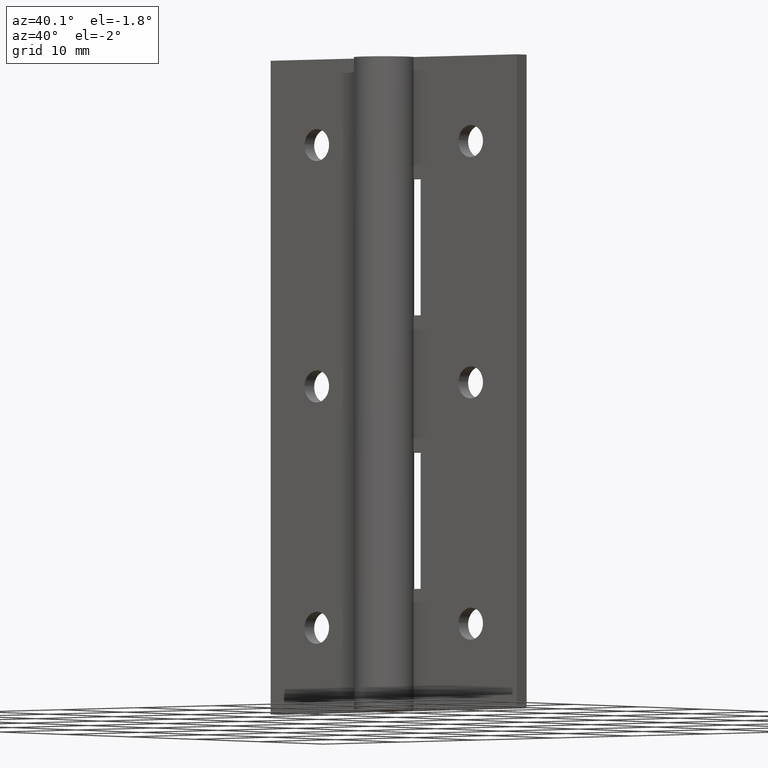
[diagram: clean part render]
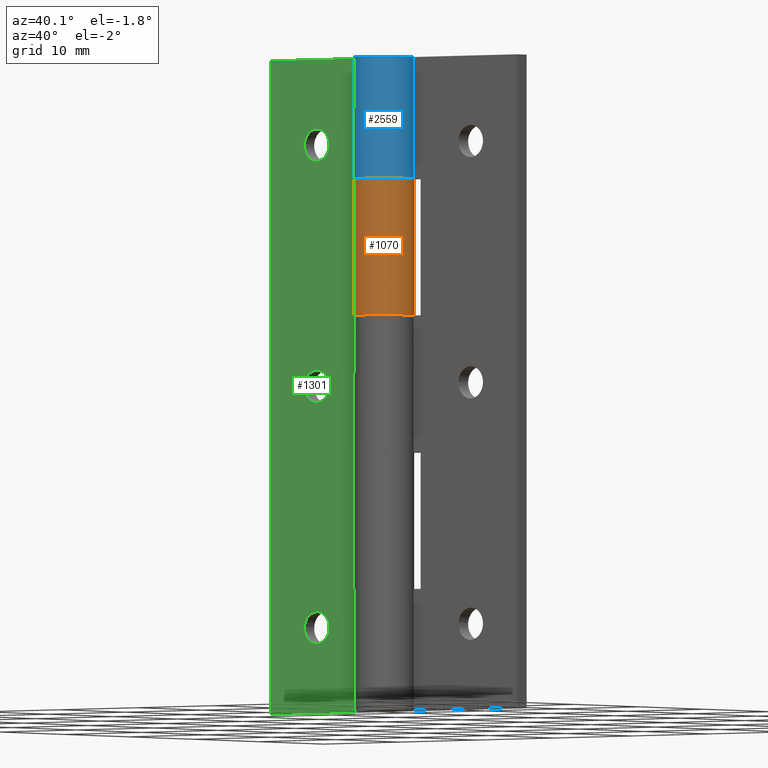
[diagram: same view with three faces highlighted in distinct colors, each labeled with its STEP entity id]
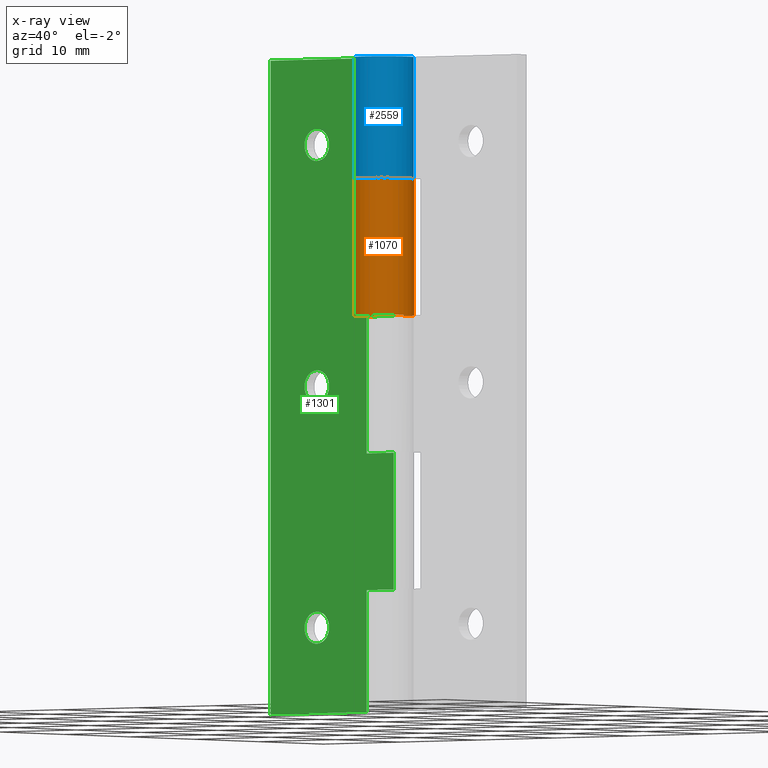
[diagram: x-ray of the same camera — body ghosted, the three highlighted faces saturated]
A machine part, auxiliary view with three faces highlighted in distinct colors.
The next image is the same camera in x-ray (body ghosted, the three faces saturated) — at least one of them is partly hidden behind the body in this view.
Their STEP definitions:

[orange] entity #1070 — the highlighted face is a freeform B-spline surface patch.
#815=CARTESIAN_POINT('',(-2.480847E-015,3.0,39.300002999999997));
#816=VERTEX_POINT('',#815);
#822=CARTESIAN_POINT('',(-2.626309197333780,1.450000000000000,39.300003000000054));
#823=VERTEX_POINT('',#822);
#824=CARTESIAN_POINT('',(-2.626309197333780,1.450000000000000,39.300003000000054));
#825=CARTESIAN_POINT('',(-3.733431584505770,-0.555272902071676,39.300003000000054));
#826=CARTESIAN_POINT('',(-2.090650590886091,-2.151552952364325,39.300003000000054));
#827=CARTESIAN_POINT('',(-0.447869597266411,-3.747833002656974,39.300003000000054));
#828=CARTESIAN_POINT('',(1.524795068197692,-2.583602136552762,39.300003000000054));
#829=CARTESIAN_POINT('',(3.497459733661794,-1.419371270448551,39.300003000000054));
#830=CARTESIAN_POINT('',(2.894028888043301,0.790314364775725,39.300003000000054));
#831=CARTESIAN_POINT('',(2.290598042424807,3.0,39.300003000000054));
#832=CARTESIAN_POINT('',(0.0,3.0,39.300003000000054));
#840=(BOUNDED_CURVE()B_SPLINE_CURVE(2,(#824,#825,#826,#827,#828,#829,#830,#831,#832),.UNSPECIFIED.,.F.,.U.)B_SPLINE_CURVE_WITH_KNOTS((3,2,2,2,3),(0.0,0.250000000000000,0.500000000000000,0.750000000000000,1.0),.UNSPECIFIED.)CURVE()GEOMETRIC_REPRESENTATION_ITEM()RATIONAL_B_SPLINE_CURVE((1.0,0.794807562115481,1.0,0.794807562115481,1.0,0.794807562115481,1.0,0.794807562115481,1.0))REPRESENTATION_ITEM(''));
#841=EDGE_CURVE('',#823,#816,#840,.T.);
#936=CARTESIAN_POINT('',(-2.626309197333780,1.450000000000000,52.899993999999801));
#937=VERTEX_POINT('',#936);
#943=CARTESIAN_POINT('',(-2.602085E-015,3.0,52.899993999999801));
#944=VERTEX_POINT('',#943);
#945=CARTESIAN_POINT('',(-2.626309197333780,1.450000000000000,52.899993999999801));
#946=CARTESIAN_POINT('',(-3.733431584505770,-0.555272902071676,52.899993999999815));
#947=CARTESIAN_POINT('',(-2.090650590886091,-2.151552952364325,52.899993999999801));
#948=CARTESIAN_POINT('',(-0.447869597266411,-3.747833002656974,52.899993999999815));
#949=CARTESIAN_POINT('',(1.524795068197692,-2.583602136552762,52.899993999999801));
#950=CARTESIAN_POINT('',(3.497459733661794,-1.419371270448551,52.899993999999815));
#951=CARTESIAN_POINT('',(2.894028888043301,0.790314364775725,52.899993999999801));
#952=CARTESIAN_POINT('',(2.290598042424807,3.0,52.899993999999815));
#953=CARTESIAN_POINT('',(0.0,3.0,52.899993999999801));
#961=(BOUNDED_CURVE()B_SPLINE_CURVE(2,(#945,#946,#947,#948,#949,#950,#951,#952,#953),.UNSPECIFIED.,.F.,.U.)B_SPLINE_CURVE_WITH_KNOTS((3,2,2,2,3),(0.0,0.250000000000000,0.500000000000000,0.750000000000000,1.0),.UNSPECIFIED.)CURVE()GEOMETRIC_REPRESENTATION_ITEM()RATIONAL_B_SPLINE_CURVE((1.0,0.794807562115481,1.0,0.794807562115481,1.0,0.794807562115481,1.0,0.794807562115481,1.0))REPRESENTATION_ITEM(''));
#962=EDGE_CURVE('',#937,#944,#961,.T.);
#1034=CARTESIAN_POINT('',(-0.078530844923626,2.998971974926671,38.960003225000001));
#1035=CARTESIAN_POINT('',(-0.078530844923626,2.998971974926671,53.248493769374797));
#1036=CARTESIAN_POINT('',(3.559513073218582,3.094237507632409,38.960003225000001));
#1037=CARTESIAN_POINT('',(3.559513073218582,3.094237507632409,53.248493769374797));
#1038=CARTESIAN_POINT('',(2.958856804611695,-0.495142817582024,38.960003225000001));
#1039=CARTESIAN_POINT('',(2.958856804611695,-0.495142817582024,53.248493769374797));
#1040=CARTESIAN_POINT('',(2.358200536004809,-4.084523142796459,38.960003225000001));
#1041=CARTESIAN_POINT('',(2.358200536004809,-4.084523142796459,53.248493769374797));
#1042=CARTESIAN_POINT('',(-1.050622143778392,-2.810016567745196,38.960003225000001));
#1043=CARTESIAN_POINT('',(-1.050622143778392,-2.810016567745196,53.248493769374797));
#1044=CARTESIAN_POINT('',(-4.459444823561594,-1.535509992693935,38.960003225000001));
#1045=CARTESIAN_POINT('',(-4.459444823561594,-1.535509992693935,53.248493769374797));
#1046=CARTESIAN_POINT('',(-2.557920493062282,1.567495694147836,38.960003225000001));
#1047=CARTESIAN_POINT('',(-2.557920493062282,1.567495694147836,53.248493769374797));
#1055=(BOUNDED_SURFACE()B_SPLINE_SURFACE(1,2,((#1034,#1036,#1038,#1040,#1042,#1044,#1046),(#1035,#1037,#1039,#1041,#1043,#1045,#1047)),.UNSPECIFIED.,.F.,.F.,.U.)B_SPLINE_SURFACE_WITH_KNOTS((2,2),(3,2,2,3),(0.0,14.288490544374801),(0.0,5.659567425254651,11.319134850509300,16.978702275763951),.UNSPECIFIED.)GEOMETRIC_REPRESENTATION_ITEM()RATIONAL_B_SPLINE_SURFACE(((1.0,0.636078220277764,1.0,0.636078220277764,1.0,0.636078220277764,1.0),(1.0,0.636078220277764,1.0,0.636078220277764,1.0,0.636078220277764,1.0)))REPRESENTATION_ITEM('')SURFACE());
#1056=CARTESIAN_POINT('',(-2.626309197333780,1.450000000000000,39.300003000000054));
#1057=CARTESIAN_POINT('',(-2.626309197333780,1.450000000000000,52.899993999999801));
#1058=QUASI_UNIFORM_CURVE('',1,(#1056,#1057),.UNSPECIFIED.,.F.,.U.);
#1059=EDGE_CURVE('',#823,#937,#1058,.T.);
#1060=ORIENTED_EDGE('',*,*,#1059,.F.);
#1061=ORIENTED_EDGE('',*,*,#841,.T.);
#1062=CARTESIAN_POINT('',(-2.480847E-015,3.0,39.300002999999997));
#1063=CARTESIAN_POINT('',(-2.602085E-015,3.0,52.899993999999801));
#1064=QUASI_UNIFORM_CURVE('',1,(#1062,#1063),.UNSPECIFIED.,.F.,.U.);
#1065=EDGE_CURVE('',#816,#944,#1064,.T.);
#1066=ORIENTED_EDGE('',*,*,#1065,.T.);
#1067=ORIENTED_EDGE('',*,*,#962,.F.);
#1068=EDGE_LOOP('',(#1060,#1061,#1066,#1067));
#1069=FACE_OUTER_BOUND('',#1068,.T.);
#1070=ADVANCED_FACE('',(#1069),#1055,.T.);

[blue] entity #2559 — the highlighted face is a freeform B-spline surface patch.
#2134=CARTESIAN_POINT('',(2.626309197333780,1.450000000000000,52.899993999999801));
#2135=VERTEX_POINT('',#2134);
#2141=CARTESIAN_POINT('',(0.0,3.0,52.899993999999801));
#2142=VERTEX_POINT('',#2141);
#2143=CARTESIAN_POINT('',(0.0,3.0,52.899993999999801));
#2144=CARTESIAN_POINT('',(-2.290598042424809,3.000000000000000,52.899993999999801));
#2145=CARTESIAN_POINT('',(-2.894028888043301,0.790314364775724,52.899993999999801));
#2146=CARTESIAN_POINT('',(-3.497459733661795,-1.419371270448553,52.899993999999801));
#2147=CARTESIAN_POINT('',(-1.524795068197690,-2.583602136552763,52.899993999999801));
#2148=CARTESIAN_POINT('',(0.447869597266411,-3.747833002656972,52.899993999999801));
#2149=CARTESIAN_POINT('',(2.090650590886090,-2.151552952364325,52.899993999999801));
#2150=CARTESIAN_POINT('',(3.733431584505770,-0.555272902071677,52.899993999999801));
#2151=CARTESIAN_POINT('',(2.626309197333780,1.449999999999999,52.899993999999801));
#2159=(BOUNDED_CURVE()B_SPLINE_CURVE(2,(#2143,#2144,#2145,#2146,#2147,#2148,#2149,#2150,#2151),.UNSPECIFIED.,.F.,.U.)B_SPLINE_CURVE_WITH_KNOTS((3,2,2,2,3),(0.0,0.250000000000000,0.500000000000000,0.750000000000000,1.0),.UNSPECIFIED.)CURVE()GEOMETRIC_REPRESENTATION_ITEM()RATIONAL_B_SPLINE_CURVE((1.0,0.794807562115481,1.0,0.794807562115481,1.0,0.794807562115481,1.0,0.794807562115481,1.0))REPRESENTATION_ITEM(''));
#2160=EDGE_CURVE('',#2142,#2135,#2159,.T.);
#2283=CARTESIAN_POINT('',(0.0,3.0,65.0));
#2284=VERTEX_POINT('',#2283);
#2290=CARTESIAN_POINT('',(2.626309197333780,1.450000000000000,65.0));
#2291=VERTEX_POINT('',#2290);
#2292=CARTESIAN_POINT('',(2.626309197333780,1.450000000000000,65.0));
#2293=CARTESIAN_POINT('',(3.733431584505770,-0.555272902071675,65.000000000000014));
#2294=CARTESIAN_POINT('',(2.090650590886091,-2.151552952364324,65.0));
#2295=CARTESIAN_POINT('',(0.447869597266413,-3.747833002656972,65.000000000000014));
#2296=CARTESIAN_POINT('',(-1.524795068197689,-2.583602136552764,65.0));
#2297=CARTESIAN_POINT('',(-3.497459733661792,-1.419371270448555,65.000000000000014));
#2298=CARTESIAN_POINT('',(-2.894028888043301,0.790314364775722,65.0));
#2299=CARTESIAN_POINT('',(-2.290598042424809,3.000000000000000,65.000000000000014));
#2300=CARTESIAN_POINT('',(0.0,3.0,65.0));
#2308=(BOUNDED_CURVE()B_SPLINE_CURVE(2,(#2292,#2293,#2294,#2295,#2296,#2297,#2298,#2299,#2300),.UNSPECIFIED.,.F.,.U.)B_SPLINE_CURVE_WITH_KNOTS((3,2,2,2,3),(0.0,0.250000000000000,0.500000000000000,0.750000000000000,1.0),.UNSPECIFIED.)CURVE()GEOMETRIC_REPRESENTATION_ITEM()RATIONAL_B_SPLINE_CURVE((1.0,0.794807562115481,1.0,0.794807562115481,1.0,0.794807562115481,1.0,0.794807562115481,1.0))REPRESENTATION_ITEM(''));
#2309=EDGE_CURVE('',#2291,#2284,#2308,.T.);
#2409=CARTESIAN_POINT('',(2.626309197333780,1.450000000000000,52.899993999999801));
#2410=CARTESIAN_POINT('',(2.626309197333780,1.450000000000000,65.0));
#2411=QUASI_UNIFORM_CURVE('',1,(#2409,#2410),.UNSPECIFIED.,.F.,.U.);
#2412=EDGE_CURVE('',#2135,#2291,#2411,.T.);
#2527=CARTESIAN_POINT('',(2.584887481324576,1.522615088882112,52.597493849999793));
#2528=CARTESIAN_POINT('',(2.584887481324576,1.522615088882112,65.310062653750009));
#2529=CARTESIAN_POINT('',(4.454017153952614,-1.650537421576552,52.597493849999786));
#2530=CARTESIAN_POINT('',(4.454017153952614,-1.650537421576552,65.310062653750023));
#2531=CARTESIAN_POINT('',(0.968449136630486,-2.839384840024272,52.597493849999793));
#2532=CARTESIAN_POINT('',(0.968449136630486,-2.839384840024272,65.310062653750009));
#2533=CARTESIAN_POINT('',(-2.517118880691642,-4.028232258471992,52.597493849999786));
#2534=CARTESIAN_POINT('',(-2.517118880691642,-4.028232258471992,65.310062653750023));
#2535=CARTESIAN_POINT('',(-2.976562347997527,-0.374268070349911,52.597493849999793));
#2536=CARTESIAN_POINT('',(-2.976562347997527,-0.374268070349911,65.310062653750009));
#2537=CARTESIAN_POINT('',(-3.436005815303412,3.279696117772171,52.597493849999786));
#2538=CARTESIAN_POINT('',(-3.436005815303412,3.279696117772171,65.310062653750023));
#2539=CARTESIAN_POINT('',(0.235377287183536,2.990752001199384,52.597493849999793));
#2540=CARTESIAN_POINT('',(0.235377287183536,2.990752001199384,65.310062653750009));
#2548=(BOUNDED_SURFACE()B_SPLINE_SURFACE(1,2,((#2527,#2529,#2531,#2533,#2535,#2537,#2539),(#2528,#2530,#2532,#2534,#2536,#2538,#2540)),.UNSPECIFIED.,.F.,.F.,.U.)B_SPLINE_SURFACE_WITH_KNOTS((2,2),(3,2,2,3),(0.0,12.712568803750219),(0.0,5.702297214197750,11.404594428395500,17.106891642593251),.UNSPECIFIED.)GEOMETRIC_REPRESENTATION_ITEM()RATIONAL_B_SPLINE_SURFACE(((1.0,0.631578351302498,1.0,0.631578351302498,1.0,0.631578351302498,1.0),(1.0,0.631578351302498,1.0,0.631578351302498,1.0,0.631578351302498,1.0)))REPRESENTATION_ITEM('')SURFACE());
#2549=CARTESIAN_POINT('',(0.0,3.0,52.899993999999801));
#2550=CARTESIAN_POINT('',(0.0,3.0,65.0));
#2551=QUASI_UNIFORM_CURVE('',1,(#2549,#2550),.UNSPECIFIED.,.F.,.U.);
#2552=EDGE_CURVE('',#2142,#2284,#2551,.T.);
#2553=ORIENTED_EDGE('',*,*,#2552,.F.);
#2554=ORIENTED_EDGE('',*,*,#2160,.T.);
#2555=ORIENTED_EDGE('',*,*,#2412,.T.);
#2556=ORIENTED_EDGE('',*,*,#2309,.T.);
#2557=EDGE_LOOP('',(#2553,#2554,#2555,#2556));
#2558=FACE_OUTER_BOUND('',#2557,.T.);
#2559=ADVANCED_FACE('',(#2558),#2548,.T.);

[green] entity #1301 — the highlighted face is a freeform B-spline surface patch.
#96=CARTESIAN_POINT('',(-8.404932266036266,1.499999999999946,56.374465446717657));
#97=VERTEX_POINT('',#96);
#103=CARTESIAN_POINT('',(-10.0,1.499999999999946,58.100000000000001));
#104=VERTEX_POINT('',#103);
#105=CARTESIAN_POINT('',(-8.404932266036266,1.499999999999946,56.374465446717664));
#106=CARTESIAN_POINT('',(-8.400000000000002,1.499999999999946,56.437135828669383));
#107=CARTESIAN_POINT('',(-8.400000000000000,1.499999999999946,56.500000000000000));
#108=CARTESIAN_POINT('',(-8.400000000000000,1.499999999999946,58.099999999999994));
#109=CARTESIAN_POINT('',(-10.0,1.499999999999946,58.100000000000001));
#117=(BOUNDED_CURVE()B_SPLINE_CURVE(2,(#105,#106,#107,#108,#109),.UNSPECIFIED.,.F.,.U.)B_SPLINE_CURVE_WITH_KNOTS((3,2,3),(0.736331300607449,0.750000000000000,1.0),.UNSPECIFIED.)CURVE()GEOMETRIC_REPRESENTATION_ITEM()RATIONAL_B_SPLINE_CURVE((0.969723356118978,0.983986122551689,1.0,0.707106781186548,1.0))REPRESENTATION_ITEM(''));
#118=EDGE_CURVE('',#97,#104,#117,.T.);
#120=CARTESIAN_POINT('',(-11.595067733963729,1.499999999999946,56.625534553282350));
#121=VERTEX_POINT('',#120);
#122=CARTESIAN_POINT('',(-10.0,1.499999999999946,58.100000000000001));
#123=CARTESIAN_POINT('',(-11.479024786434021,1.499999999999947,58.099999999999987));
#124=CARTESIAN_POINT('',(-11.595067733963734,1.499999999999945,56.625534553282350));
#132=(BOUNDED_CURVE()B_SPLINE_CURVE(2,(#122,#123,#124),.UNSPECIFIED.,.F.,.U.)B_SPLINE_CURVE_WITH_KNOTS((3,3),(0.0,0.236331300607449),.UNSPECIFIED.)CURVE()GEOMETRIC_REPRESENTATION_ITEM()RATIONAL_B_SPLINE_CURVE((1.0,0.723120658634858,0.969723356118979))REPRESENTATION_ITEM(''));
#133=EDGE_CURVE('',#104,#121,#132,.T.);
#179=CARTESIAN_POINT('',(-10.0,1.499999999999946,54.900000000000013));
#180=VERTEX_POINT('',#179);
#181=CARTESIAN_POINT('',(-11.595067733963734,1.499999999999945,56.625534553282350));
#182=CARTESIAN_POINT('',(-11.600000000000007,1.499999999999946,56.562864171330602));
#183=CARTESIAN_POINT('',(-11.600000000000000,1.499999999999946,56.500000000000000));
#184=CARTESIAN_POINT('',(-11.600000000000001,1.499999999999946,54.899999999999991));
#185=CARTESIAN_POINT('',(-10.0,1.499999999999946,54.900000000000013));
#193=(BOUNDED_CURVE()B_SPLINE_CURVE(2,(#181,#182,#183,#184,#185),.UNSPECIFIED.,.F.,.U.)B_SPLINE_CURVE_WITH_KNOTS((3,2,3),(0.236331300607449,0.250000000000000,0.500000000000000),.UNSPECIFIED.)CURVE()GEOMETRIC_REPRESENTATION_ITEM()RATIONAL_B_SPLINE_CURVE((0.969723356118979,0.983986122551689,1.0,0.707106781186548,1.0))REPRESENTATION_ITEM(''));
#194=EDGE_CURVE('',#121,#180,#193,.T.);
#196=CARTESIAN_POINT('',(-10.0,1.499999999999946,54.900000000000013));
#197=CARTESIAN_POINT('',(-8.520975213565988,1.499999999999947,54.900000000000013));
#198=CARTESIAN_POINT('',(-8.404932266036266,1.499999999999945,56.374465446717657));
#206=(BOUNDED_CURVE()B_SPLINE_CURVE(2,(#196,#197,#198),.UNSPECIFIED.,.F.,.U.)B_SPLINE_CURVE_WITH_KNOTS((3,3),(0.500000000000000,0.736331300607449),.UNSPECIFIED.)CURVE()GEOMETRIC_REPRESENTATION_ITEM()RATIONAL_B_SPLINE_CURVE((1.0,0.723120658634859,0.969723356118978))REPRESENTATION_ITEM(''));
#207=EDGE_CURVE('',#180,#97,#206,.T.);
#278=CARTESIAN_POINT('',(-8.404932266036267,1.499999999999946,32.374465446717657));
#279=VERTEX_POINT('',#278);
#285=CARTESIAN_POINT('',(-10.0,1.499999999999946,34.100000000000001));
#286=VERTEX_POINT('',#285);
#287=CARTESIAN_POINT('',(-8.404932266036267,1.499999999999947,32.374465446717664));
#288=CARTESIAN_POINT('',(-8.400000000000000,1.499999999999947,32.437135828669383));
#289=CARTESIAN_POINT('',(-8.400000000000000,1.499999999999946,32.500000000000000));
#290=CARTESIAN_POINT('',(-8.400000000000000,1.499999999999946,34.099999999999994));
#291=CARTESIAN_POINT('',(-10.0,1.499999999999946,34.100000000000001));
#299=(BOUNDED_CURVE()B_SPLINE_CURVE(2,(#287,#288,#289,#290,#291),.UNSPECIFIED.,.F.,.U.)B_SPLINE_CURVE_WITH_KNOTS((3,2,3),(0.736331300607449,0.750000000000000,1.0),.UNSPECIFIED.)CURVE()GEOMETRIC_REPRESENTATION_ITEM()RATIONAL_B_SPLINE_CURVE((0.969723356118978,0.983986122551688,1.0,0.707106781186548,1.0))REPRESENTATION_ITEM(''));
#300=EDGE_CURVE('',#279,#286,#299,.T.);
#302=CARTESIAN_POINT('',(-11.595067733963729,1.499999999999946,32.625534553282343));
#303=VERTEX_POINT('',#302);
#304=CARTESIAN_POINT('',(-10.0,1.499999999999946,34.100000000000001));
#305=CARTESIAN_POINT('',(-11.479024786434021,1.499999999999947,34.100000000000001));
#306=CARTESIAN_POINT('',(-11.595067733963734,1.499999999999945,32.625534553282336));
#314=(BOUNDED_CURVE()B_SPLINE_CURVE(2,(#304,#305,#306),.UNSPECIFIED.,.F.,.U.)B_SPLINE_CURVE_WITH_KNOTS((3,3),(0.0,0.236331300607449),.UNSPECIFIED.)CURVE()GEOMETRIC_REPRESENTATION_ITEM()RATIONAL_B_SPLINE_CURVE((1.0,0.723120658634858,0.969723356118979))REPRESENTATION_ITEM(''));
#315=EDGE_CURVE('',#286,#303,#314,.T.);
#361=CARTESIAN_POINT('',(-10.0,1.499999999999946,30.899999999999999));
#362=VERTEX_POINT('',#361);
#363=CARTESIAN_POINT('',(-11.595067733963734,1.499999999999945,32.625534553282336));
#364=CARTESIAN_POINT('',(-11.600000000000007,1.499999999999946,32.562864171330610));
#365=CARTESIAN_POINT('',(-11.600000000000000,1.499999999999946,32.500000000000000));
#366=CARTESIAN_POINT('',(-11.600000000000001,1.499999999999946,30.900000000000002));
#367=CARTESIAN_POINT('',(-10.0,1.499999999999946,30.899999999999999));
#375=(BOUNDED_CURVE()B_SPLINE_CURVE(2,(#363,#364,#365,#366,#367),.UNSPECIFIED.,.F.,.U.)B_SPLINE_CURVE_WITH_KNOTS((3,2,3),(0.236331300607449,0.250000000000000,0.500000000000000),.UNSPECIFIED.)CURVE()GEOMETRIC_REPRESENTATION_ITEM()RATIONAL_B_SPLINE_CURVE((0.969723356118979,0.983986122551689,1.0,0.707106781186548,1.0))REPRESENTATION_ITEM(''));
#376=EDGE_CURVE('',#303,#362,#375,.T.);
#378=CARTESIAN_POINT('',(-10.0,1.499999999999946,30.899999999999999));
#379=CARTESIAN_POINT('',(-8.520975213565988,1.499999999999947,30.899999999999991));
#380=CARTESIAN_POINT('',(-8.404932266036267,1.499999999999947,32.374465446717664));
#388=(BOUNDED_CURVE()B_SPLINE_CURVE(2,(#378,#379,#380),.UNSPECIFIED.,.F.,.U.)B_SPLINE_CURVE_WITH_KNOTS((3,3),(0.500000000000000,0.736331300607449),.UNSPECIFIED.)CURVE()GEOMETRIC_REPRESENTATION_ITEM()RATIONAL_B_SPLINE_CURVE((1.0,0.723120658634859,0.969723356118978))REPRESENTATION_ITEM(''));
#389=EDGE_CURVE('',#362,#279,#388,.T.);
#460=CARTESIAN_POINT('',(-8.404932266036266,1.499999999999946,8.374465446717661));
#461=VERTEX_POINT('',#460);
#467=CARTESIAN_POINT('',(-10.0,1.499999999999946,10.100000000000000));
#468=VERTEX_POINT('',#467);
#469=CARTESIAN_POINT('',(-8.404932266036266,1.499999999999946,8.374465446717661));
#470=CARTESIAN_POINT('',(-8.399999999999999,1.499999999999946,8.437135828669394));
#471=CARTESIAN_POINT('',(-8.400000000000000,1.499999999999946,8.500000000000000));
#472=CARTESIAN_POINT('',(-8.400000000000000,1.499999999999946,10.100000000000001));
#473=CARTESIAN_POINT('',(-10.0,1.499999999999946,10.100000000000000));
#481=(BOUNDED_CURVE()B_SPLINE_CURVE(2,(#469,#470,#471,#472,#473),.UNSPECIFIED.,.F.,.U.)B_SPLINE_CURVE_WITH_KNOTS((3,2,3),(0.736331300607449,0.750000000000000,1.0),.UNSPECIFIED.)CURVE()GEOMETRIC_REPRESENTATION_ITEM()RATIONAL_B_SPLINE_CURVE((0.969723356118979,0.983986122551689,1.0,0.707106781186548,1.0))REPRESENTATION_ITEM(''));
#482=EDGE_CURVE('',#461,#468,#481,.T.);
#484=CARTESIAN_POINT('',(-11.595067733963729,1.499999999999946,8.625534553282341));
#485=VERTEX_POINT('',#484);
#486=CARTESIAN_POINT('',(-10.0,1.499999999999946,10.100000000000000));
#487=CARTESIAN_POINT('',(-11.479024786434016,1.499999999999946,10.100000000000001));
#488=CARTESIAN_POINT('',(-11.595067733963733,1.499999999999946,8.625534553282341));
#496=(BOUNDED_CURVE()B_SPLINE_CURVE(2,(#486,#487,#488),.UNSPECIFIED.,.F.,.U.)B_SPLINE_CURVE_WITH_KNOTS((3,3),(0.0,0.236331300607449),.UNSPECIFIED.)CURVE()GEOMETRIC_REPRESENTATION_ITEM()RATIONAL_B_SPLINE_CURVE((1.0,0.723120658634859,0.969723356118978))REPRESENTATION_ITEM(''));
#497=EDGE_CURVE('',#468,#485,#496,.T.);
#543=CARTESIAN_POINT('',(-10.0,1.499999999999946,6.900000000000000));
#544=VERTEX_POINT('',#543);
#545=CARTESIAN_POINT('',(-11.595067733963731,1.499999999999945,8.625534553282341));
#546=CARTESIAN_POINT('',(-11.600000000000000,1.499999999999946,8.562864171330608));
#547=CARTESIAN_POINT('',(-11.600000000000000,1.499999999999946,8.500000000000000));
#548=CARTESIAN_POINT('',(-11.600000000000001,1.499999999999946,6.900000000000000));
#549=CARTESIAN_POINT('',(-10.0,1.499999999999946,6.900000000000000));
#557=(BOUNDED_CURVE()B_SPLINE_CURVE(2,(#545,#546,#547,#548,#549),.UNSPECIFIED.,.F.,.U.)B_SPLINE_CURVE_WITH_KNOTS((3,2,3),(0.236331300607449,0.250000000000000,0.500000000000000),.UNSPECIFIED.)CURVE()GEOMETRIC_REPRESENTATION_ITEM()RATIONAL_B_SPLINE_CURVE((0.969723356118979,0.983986122551689,1.0,0.707106781186548,1.0))REPRESENTATION_ITEM(''));
#558=EDGE_CURVE('',#485,#544,#557,.T.);
#560=CARTESIAN_POINT('',(-10.0,1.499999999999946,6.900000000000000));
#561=CARTESIAN_POINT('',(-8.520975213565988,1.499999999999947,6.900000000000000));
#562=CARTESIAN_POINT('',(-8.404932266036266,1.499999999999947,8.374465446717661));
#570=(BOUNDED_CURVE()B_SPLINE_CURVE(2,(#560,#561,#562),.UNSPECIFIED.,.F.,.U.)B_SPLINE_CURVE_WITH_KNOTS((3,3),(0.500000000000000,0.736331300607449),.UNSPECIFIED.)CURVE()GEOMETRIC_REPRESENTATION_ITEM()RATIONAL_B_SPLINE_CURVE((1.0,0.723120658634859,0.969723356118978))REPRESENTATION_ITEM(''));
#571=EDGE_CURVE('',#544,#461,#570,.T.);
#595=CARTESIAN_POINT('',(-3.500000000000100,1.500000000000000,0.0));
#596=VERTEX_POINT('',#595);
#611=CARTESIAN_POINT('',(-3.500000000000100,1.499999999999946,12.100006000000199));
#612=VERTEX_POINT('',#611);
#618=CARTESIAN_POINT('',(-3.500000000000100,1.500000000000000,0.0));
#619=CARTESIAN_POINT('',(-3.500000000000100,1.499999999999946,12.100006000000199));
#620=QUASI_UNIFORM_CURVE('',1,(#618,#619),.UNSPECIFIED.,.F.,.U.);
#621=EDGE_CURVE('',#596,#612,#620,.T.);
#667=CARTESIAN_POINT('',(0.0,1.500000000000000,12.100006000000160));
#668=VERTEX_POINT('',#667);
#688=CARTESIAN_POINT('',(-3.500000000000100,1.499999999999946,12.100006000000199));
#689=CARTESIAN_POINT('',(0.0,1.500000000000000,12.100006000000160));
#690=QUASI_UNIFORM_CURVE('',1,(#688,#689),.UNSPECIFIED.,.F.,.U.);
#691=EDGE_CURVE('',#612,#668,#690,.T.);
#701=CARTESIAN_POINT('',(-3.500000000000100,1.499999999999946,39.300002999999997));
#702=VERTEX_POINT('',#701);
#703=CARTESIAN_POINT('',(-3.500000000000100,1.499999999999946,25.699996999999900));
#704=VERTEX_POINT('',#703);
#705=CARTESIAN_POINT('',(-3.500000000000100,1.499999999999946,39.300002999999997));
#706=CARTESIAN_POINT('',(-3.500000000000100,1.499999999999946,25.699996999999900));
#707=QUASI_UNIFORM_CURVE('',1,(#705,#706),.UNSPECIFIED.,.F.,.U.);
#708=EDGE_CURVE('',#702,#704,#707,.T.);
#737=CARTESIAN_POINT('',(0.0,1.500000000000000,25.699996999999900));
#738=VERTEX_POINT('',#737);
#739=CARTESIAN_POINT('',(-3.500000000000100,1.499999999999946,25.699996999999900));
#740=CARTESIAN_POINT('',(0.0,1.500000000000000,25.699996999999900));
#741=QUASI_UNIFORM_CURVE('',1,(#739,#740),.UNSPECIFIED.,.F.,.U.);
#742=EDGE_CURVE('',#704,#738,#741,.T.);
#807=CARTESIAN_POINT('',(0.0,1.500000000000000,39.300003000000054));
#808=VERTEX_POINT('',#807);
#809=CARTESIAN_POINT('',(0.0,1.500000000000000,39.300003000000054));
#810=CARTESIAN_POINT('',(-3.500000000000100,1.499999999999946,39.300002999999997));
#811=QUASI_UNIFORM_CURVE('',1,(#809,#810),.UNSPECIFIED.,.F.,.U.);
#812=EDGE_CURVE('',#808,#702,#811,.T.);
#877=CARTESIAN_POINT('',(-3.500000000000100,1.499999999999946,52.899993999999801));
#878=VERTEX_POINT('',#877);
#893=CARTESIAN_POINT('',(-3.500000000000100,1.499999999999946,65.0));
#894=VERTEX_POINT('',#893);
#900=CARTESIAN_POINT('',(-3.500000000000100,1.499999999999946,52.899993999999801));
#901=CARTESIAN_POINT('',(-3.500000000000100,1.499999999999946,65.0));
#902=QUASI_UNIFORM_CURVE('',1,(#900,#901),.UNSPECIFIED.,.F.,.U.);
#903=EDGE_CURVE('',#878,#894,#902,.T.);
#915=CARTESIAN_POINT('',(0.0,1.500000000000000,52.899993999999801));
#916=VERTEX_POINT('',#915);
#970=CARTESIAN_POINT('',(0.0,1.500000000000000,52.899993999999801));
#971=CARTESIAN_POINT('',(-3.500000000000100,1.499999999999946,52.899993999999801));
#972=QUASI_UNIFORM_CURVE('',1,(#970,#971),.UNSPECIFIED.,.F.,.U.);
#973=EDGE_CURVE('',#916,#878,#972,.T.);
#985=CARTESIAN_POINT('',(-16.0,1.500000000000000,65.0));
#986=VERTEX_POINT('',#985);
#999=CARTESIAN_POINT('',(-16.0,1.500000000000000,0.0));
#1000=VERTEX_POINT('',#999);
#1006=CARTESIAN_POINT('',(-16.0,1.500000000000000,0.0));
#1007=CARTESIAN_POINT('',(-16.0,1.500000000000000,65.0));
#1008=QUASI_UNIFORM_CURVE('',1,(#1006,#1007),.UNSPECIFIED.,.F.,.U.);
#1009=EDGE_CURVE('',#1000,#986,#1008,.T.);
#1026=CARTESIAN_POINT('',(-16.0,1.500000000000000,65.0));
#1027=CARTESIAN_POINT('',(-3.500000000000100,1.499999999999946,65.0));
#1028=QUASI_UNIFORM_CURVE('',1,(#1026,#1027),.UNSPECIFIED.,.F.,.U.);
#1029=EDGE_CURVE('',#986,#894,#1028,.T.);
#1112=CARTESIAN_POINT('',(0.0,1.500000000000000,39.300003000000054));
#1113=CARTESIAN_POINT('',(0.0,1.500000000000000,52.899993999999801));
#1114=QUASI_UNIFORM_CURVE('',1,(#1112,#1113),.UNSPECIFIED.,.F.,.U.);
#1115=EDGE_CURVE('',#808,#916,#1114,.T.);
#1131=CARTESIAN_POINT('',(-16.0,1.500000000000000,0.0));
#1132=CARTESIAN_POINT('',(-3.500000000000100,1.500000000000000,0.0));
#1133=QUASI_UNIFORM_CURVE('',1,(#1131,#1132),.UNSPECIFIED.,.F.,.U.);
#1134=EDGE_CURVE('',#1000,#596,#1133,.T.);
#1182=CARTESIAN_POINT('',(0.0,1.500000000000000,12.100006000000160));
#1183=CARTESIAN_POINT('',(0.0,1.500000000000000,25.699996999999900));
#1184=QUASI_UNIFORM_CURVE('',1,(#1182,#1183),.UNSPECIFIED.,.F.,.U.);
#1185=EDGE_CURVE('',#668,#738,#1184,.T.);
#1264=CARTESIAN_POINT('',(-16.799199968988891,1.500000000000000,68.246749874017397));
#1265=CARTESIAN_POINT('',(-16.799199968988891,1.500000000000000,-3.246751617453247));
#1266=CARTESIAN_POINT('',(0.799200398142338,1.500000000000000,68.246749874017397));
#1267=CARTESIAN_POINT('',(0.799200398142338,1.500000000000000,-3.246751617453247));
#1268=B_SPLINE_SURFACE_WITH_KNOTS('',1,1,((#1264,#1266),(#1265,#1267)),.UNSPECIFIED.,.F.,.F.,.U.,(2,2),(2,2),(0.0,71.493501491470639),(0.0,17.598400367131230),.UNSPECIFIED.);
#1269=ORIENTED_EDGE('',*,*,#1134,.T.);
#1270=ORIENTED_EDGE('',*,*,#621,.T.);
#1271=ORIENTED_EDGE('',*,*,#691,.T.);
#1272=ORIENTED_EDGE('',*,*,#1185,.T.);
#1273=ORIENTED_EDGE('',*,*,#742,.F.);
#1274=ORIENTED_EDGE('',*,*,#708,.F.);
#1275=ORIENTED_EDGE('',*,*,#812,.F.);
#1276=ORIENTED_EDGE('',*,*,#1115,.T.);
#1277=ORIENTED_EDGE('',*,*,#973,.T.);
#1278=ORIENTED_EDGE('',*,*,#903,.T.);
#1279=ORIENTED_EDGE('',*,*,#1029,.F.);
#1280=ORIENTED_EDGE('',*,*,#1009,.F.);
#1281=EDGE_LOOP('',(#1269,#1270,#1271,#1272,#1273,#1274,#1275,#1276,#1277,#1278,#1279,#1280));
#1282=FACE_OUTER_BOUND('',#1281,.T.);
#1283=ORIENTED_EDGE('',*,*,#571,.F.);
#1284=ORIENTED_EDGE('',*,*,#558,.F.);
#1285=ORIENTED_EDGE('',*,*,#497,.F.);
#1286=ORIENTED_EDGE('',*,*,#482,.F.);
#1287=EDGE_LOOP('',(#1283,#1284,#1285,#1286));
#1288=FACE_BOUND('',#1287,.T.);
#1289=ORIENTED_EDGE('',*,*,#389,.F.);
#1290=ORIENTED_EDGE('',*,*,#376,.F.);
#1291=ORIENTED_EDGE('',*,*,#315,.F.);
#1292=ORIENTED_EDGE('',*,*,#300,.F.);
#1293=EDGE_LOOP('',(#1289,#1290,#1291,#1292));
#1294=FACE_BOUND('',#1293,.T.);
#1295=ORIENTED_EDGE('',*,*,#207,.F.);
#1296=ORIENTED_EDGE('',*,*,#194,.F.);
#1297=ORIENTED_EDGE('',*,*,#133,.F.);
#1298=ORIENTED_EDGE('',*,*,#118,.F.);
#1299=EDGE_LOOP('',(#1295,#1296,#1297,#1298));
#1300=FACE_BOUND('',#1299,.T.);
#1301=ADVANCED_FACE('',(#1282,#1288,#1294,#1300),#1268,.T.);